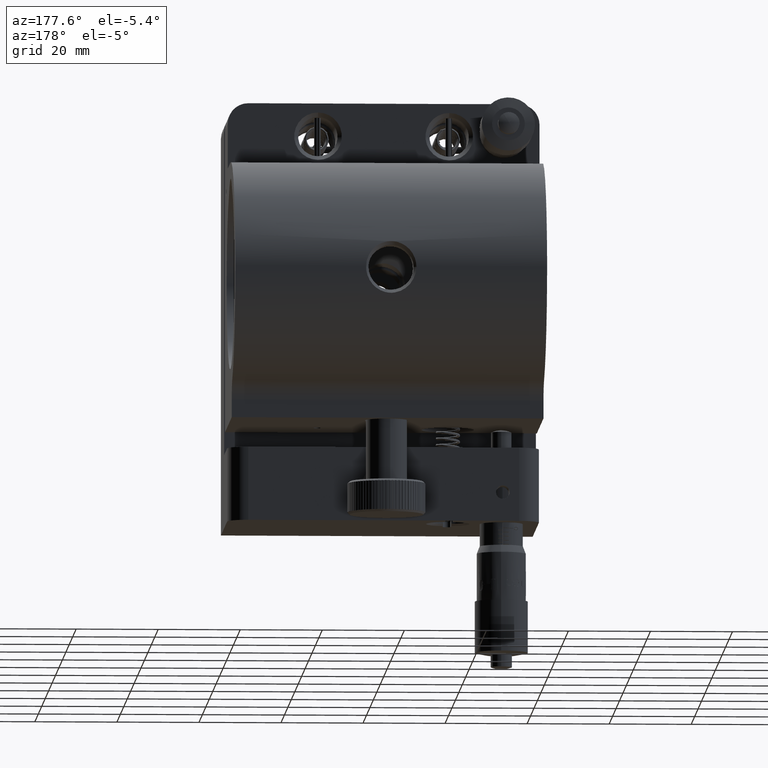
[diagram: clean part render]
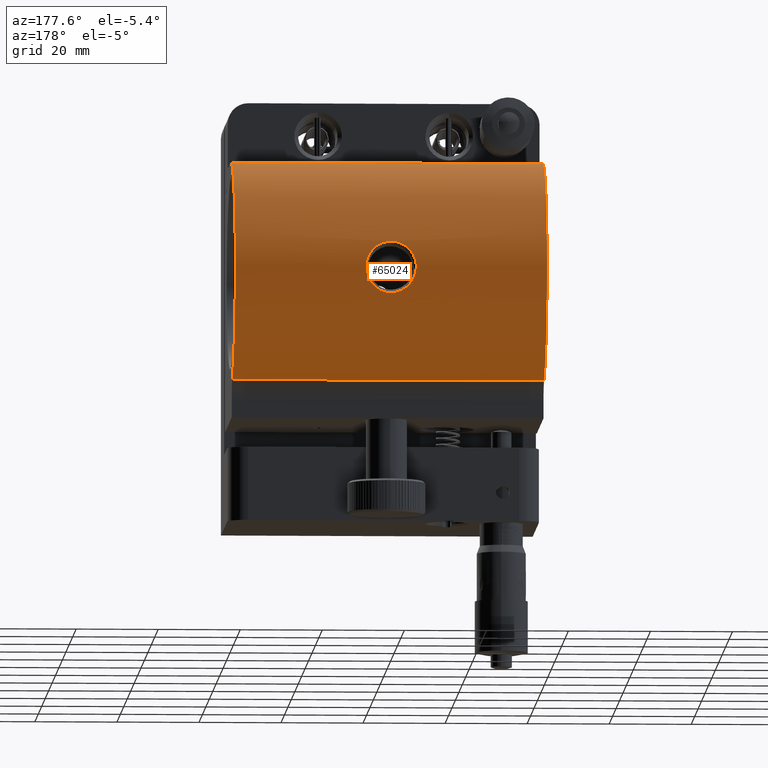
[diagram: same view with one face highlighted and labeled with its STEP entity id]
A machine part, auxiliary view. The second image highlights one B-rep face of the part: STEP entity #65024.
In plain terms, the highlighted cylindrical surface (partial cylindrical patch) has radius 28 mm, axis along (-1, -0, -0).
Its self-contained STEP definition (entity closure, byte-faithful):
#2238 = B_SPLINE_CURVE_WITH_KNOTS ( 'NONE', 3,
 ( #75915, #25864, #46938, #61275, #74730, #32886, #81722, #5171, #60977, #89007, #75310, #7834, #28861, #11465, #13821, #42191, #2263, #51823, #61581, #70709, #65195, #62665, #36389, #64794, #37628, #37336, #74565, #84103, #84401, #71011, #28263, #15136 ),
 .UNSPECIFIED., .F., .F.,
 ( 4, 2, 2, 2, 2, 2, 2, 2, 2, 2, 2, 2, 2, 2, 2, 4 ),
 ( 0.5000000000000000000, 0.5312500000000000000, 0.5625000000000000000, 0.6250000000000000000, 0.6562500000000000000, 0.6718750000000000000, 0.6875000000000000000, 0.7500000000000002200, 0.7812500000000002200, 0.7968750000000002200, 0.8125000000000002200, 0.8437500000000002200, 0.8750000000000002200, 0.9062500000000002200, 0.9375000000000001100, 1.000000000000000000 ),
 .UNSPECIFIED. ) ;
#2263 = CARTESIAN_POINT ( 'NONE',  ( -0.8020151957228004400, 83.28640839443372100, 6.281633589561216100 ) ) ;
#5002 = ORIENTED_EDGE ( 'NONE', *, *, #18049, .T. ) ;
#5171 = CARTESIAN_POINT ( 'NONE',  ( 4.048664636275285400, 83.59299964372608800, 4.765948128802787800 ) ) ;
#5892 = CARTESIAN_POINT ( 'NONE',  ( 4.051751842081933400, 83.59340847182842500, -4.763549747243200000 ) ) ;
#7834 = CARTESIAN_POINT ( 'NONE',  ( 2.717248387918061300, 83.42113405716233400, 5.664910762095868100 ) ) ;
#8179 = CARTESIAN_POINT ( 'NONE',  ( -37.99999999999999300, 55.99999999999979400, -9.584347204771859200E-014 ) ) ;
#8183 = DIRECTION ( 'NONE',  ( 0.0000000000000000000, 0.0000000000000000000, 1.000000000000000000 ) ) ;
#9779 = EDGE_CURVE ( 'NONE', #81884, #68925, #35064, .T. ) ;
#10037 = ORIENTED_EDGE ( 'NONE', *, *, #55019, .T. ) ;
#11465 = CARTESIAN_POINT ( 'NONE',  ( 1.582447328561504200, 83.31593584649343100, 6.160405067730834200 ) ) ;
#12101 = LINE ( 'NONE', #61838, #19688 ) ;
#12604 = DIRECTION ( 'NONE',  ( -1.000000000000000000, -0.0000000000000000000, -0.0000000000000000000 ) ) ;
#12868 = CARTESIAN_POINT ( 'NONE',  ( 3.743405247225039200, 83.54653296612438900, -5.024133250391980900 ) ) ;
#13821 = CARTESIAN_POINT ( 'NONE',  ( 0.7980807202635793500, 83.27687617770270400, 6.322343393602417400 ) ) ;
#15136 = CARTESIAN_POINT ( 'NONE',  ( -6.131752276060040300, 83.99999999999980100, -1.748090863545192300E-013 ) ) ;
#15729 = VERTEX_POINT ( 'NONE', #31658 ) ;
#15799 = CARTESIAN_POINT ( 'NONE',  ( 38.00000000000000700, 55.99999999999979400, -9.584347204771859200E-014 ) ) ;
#16464 = ORIENTED_EDGE ( 'NONE', *, *, #9779, .F. ) ;
#17911 = CARTESIAN_POINT ( 'NONE',  ( 38.00000000000000700, 55.99999999999979400, 27.99999999999990400 ) ) ;
#18049 = EDGE_CURVE ( 'NONE', #71386, #68925, #62941, .T. ) ;
#19577 = CARTESIAN_POINT ( 'NONE',  ( -2.718510192674235900, 83.42093943498618100, -5.665853050507869200 ) ) ;
#19688 = VECTOR ( 'NONE', #75300, 1000.000000000000000 ) ;
#19885 = CARTESIAN_POINT ( 'NONE',  ( -5.933252130300165700, 83.95527819307683600, -1.632772785258791000 ) ) ;
#20174 = CARTESIAN_POINT ( 'NONE',  ( -3.073236035063647600, 83.46033735208747800, -5.471716622475867100 ) ) ;
#20460 = CARTESIAN_POINT ( 'NONE',  ( -3.741423593908575400, 83.54616141535729000, -5.026165914435840600 ) ) ;
#22505 = DIRECTION ( 'NONE',  ( -1.000000000000000000, -0.0000000000000000000, -0.0000000000000000000 ) ) ;
#25864 = CARTESIAN_POINT ( 'NONE',  ( 6.131736912276909200, 83.99990133714264600, 0.4213674120397877800 ) ) ;
#26877 = CARTESIAN_POINT ( 'NONE',  ( -4.048990435230683400, 83.59291724786086800, -4.766443399832820800 ) ) ;
#27179 = CARTESIAN_POINT ( 'NONE',  ( 0.7980732263529142200, 83.28635106429354100, -6.281878644552842900 ) ) ;
#28263 = CARTESIAN_POINT ( 'NONE',  ( -6.132491279341644000, 83.99999999999978700, 0.8292308344536657400 ) ) ;
#28861 = CARTESIAN_POINT ( 'NONE',  ( 2.535441571572751900, 83.40269462142593700, 5.753195750657070600 ) ) ;
#31658 = CARTESIAN_POINT ( 'NONE',  ( 6.131748926908001000, 83.99999922025755000, 0.006607992519576321200 ) ) ;
#31730 = EDGE_LOOP ( 'NONE', ( #84123, #36768 ) ) ;
#32239 = CARTESIAN_POINT ( 'NONE',  ( -37.99999999999999300, 55.99999999999979400, 27.99999999999990400 ) ) ;
#32886 = CARTESIAN_POINT ( 'NONE',  ( 5.342921004288947500, 83.82673648497399200, 3.207030123834930800 ) ) ;
#33887 = CARTESIAN_POINT ( 'NONE',  ( -0.8012989492654717400, 83.27690611871509000, -6.322214217685824700 ) ) ;
#34200 = CARTESIAN_POINT ( 'NONE',  ( -1.585108213186972900, 83.31588813121396700, -6.160575905356922500 ) ) ;
#34482 = CARTESIAN_POINT ( 'NONE',  ( -5.341911942470646000, 83.82705530148472000, -3.204729216498923200 ) ) ;
#35064 = LINE ( 'NONE', #87063, #36137 ) ;
#35874 = DIRECTION ( 'NONE',  ( 1.000000000000000000, 0.0000000000000000000, 0.0000000000000000000 ) ) ;
#36137 = VECTOR ( 'NONE', #12604, 1000.000000000000000 ) ;
#36203 = CARTESIAN_POINT ( 'NONE',  ( 38.00000000000000700, 55.99999999999979400, -9.584347204771859200E-014 ) ) ;
#36389 = CARTESIAN_POINT ( 'NONE',  ( -3.085033064450040100, 83.46033362850047900, 5.475730376528114000 ) ) ;
#36768 = ORIENTED_EDGE ( 'NONE', *, *, #78081, .T. ) ;
#36819 = VERTEX_POINT ( 'NONE', #50842 ) ;
#37336 = CARTESIAN_POINT ( 'NONE',  ( -4.622027813131273500, 83.68855321195157200, 4.175142844660492800 ) ) ;
#37628 = CARTESIAN_POINT ( 'NONE',  ( -4.055267467222162900, 83.59399690683763100, 4.760160863860467600 ) ) ;
#38819 = CYLINDRICAL_SURFACE ( 'NONE', #80952, 27.99999999999999600 ) ;
#39058 = EDGE_CURVE ( 'NONE', #40296, #81884, #90114, .T. ) ;
#40296 = VERTEX_POINT ( 'NONE', #84513 ) ;
#40321 = CARTESIAN_POINT ( 'NONE',  ( 4.618316260113570800, 83.68793611521672900, -4.179209371078480100 ) ) ;
#40328 = AXIS2_PLACEMENT_3D ( 'NONE', #36203, #35874, #85011 ) ;
#40423 = ORIENTED_EDGE ( 'NONE', *, *, #39058, .F. ) ;
#40924 = CARTESIAN_POINT ( 'NONE',  ( 2.726663832564829400, 83.41993899754183400, -5.672238446792051500 ) ) ;
#41219 = CARTESIAN_POINT ( 'NONE',  ( 5.973732727639681900, 83.96344776100710300, -1.633469704416410200 ) ) ;
#42191 = CARTESIAN_POINT ( 'NONE',  ( -0.4056695994395069800, 83.27686970427984600, 6.322371322203410100 ) ) ;
#46938 = CARTESIAN_POINT ( 'NONE',  ( 6.092209349748423500, 83.99058927202136700, 0.8307330661512870600 ) ) ;
#47942 = CARTESIAN_POINT ( 'NONE',  ( -5.814069395317333500, 83.92888538148466200, -2.032531764481353900 ) ) ;
#48256 = CARTESIAN_POINT ( 'NONE',  ( 6.131748926908001000, 83.99999922025755000, 0.006607992519576321200 ) ) ;
#50842 = CARTESIAN_POINT ( 'NONE',  ( -6.131752276060040300, 83.99999999999980100, -1.748090863545192300E-013 ) ) ;
#51441 = EDGE_LOOP ( 'NONE', ( #40423, #10037, #5002, #16464 ) ) ;
#51823 = CARTESIAN_POINT ( 'NONE',  ( -1.389176824721134700, 83.31420475158942900, 6.159218269681018000 ) ) ;
#53486 = CARTESIAN_POINT ( 'NONE',  ( -6.131752276060040300, 83.99999999999980100, -1.748090863545192300E-013 ) ) ;
#55019 = EDGE_CURVE ( 'NONE', #40296, #71386, #12101, .T. ) ;
#60640 = CARTESIAN_POINT ( 'NONE',  ( -37.99999999999999300, 66.18181818181804500, -26.08314740426086300 ) ) ;
#60977 = CARTESIAN_POINT ( 'NONE',  ( 3.740713435244874800, 83.54628769462635800, 5.025468251431009400 ) ) ;
#61108 = CARTESIAN_POINT ( 'NONE',  ( -2.536347602808982900, 83.40246395436503200, -5.754291591706415700 ) ) ;
#61275 = CARTESIAN_POINT ( 'NONE',  ( 5.934123128896670700, 83.95497129755037200, 1.637920930731661600 ) ) ;
#61581 = CARTESIAN_POINT ( 'NONE',  ( -1.583671240149476400, 83.32570111538537100, 6.108191089801295900 ) ) ;
#61755 = FACE_BOUND ( 'NONE', #31730, .T. ) ;
#61838 = CARTESIAN_POINT ( 'NONE',  ( 38.00000000000000700, 66.18181818181804500, -26.08314740426086300 ) ) ;
#61978 = CARTESIAN_POINT ( 'NONE',  ( -3.244704081124941000, 83.48116013382347900, -5.366486357872556600 ) ) ;
#62665 = CARTESIAN_POINT ( 'NONE',  ( -2.730733955293319000, 83.42036218154397900, 5.670200744710002500 ) ) ;
#62941 = CIRCLE ( 'NONE', #77206, 27.99999999999999600 ) ;
#63991 = DIRECTION ( 'NONE',  ( 1.000000000000000000, 0.0000000000000000000, 0.0000000000000000000 ) ) ;
#64794 = CARTESIAN_POINT ( 'NONE',  ( -3.746893608220561900, 83.54708285297630300, 5.021132585009708800 ) ) ;
#65024 = ADVANCED_FACE ( 'NONE', ( #61755, #67315 ), #38819, .T. ) ;
#65195 = CARTESIAN_POINT ( 'NONE',  ( -2.164232035651058700, 83.36860769018078100, 5.913220168745341200 ) ) ;
#67315 = FACE_OUTER_BOUND ( 'NONE', #51441, .T. ) ;
#68736 = CARTESIAN_POINT ( 'NONE',  ( 0.4018959311760176300, 83.27685418300428900, -6.322438286372481300 ) ) ;
#68925 = VERTEX_POINT ( 'NONE', #32239 ) ;
#69037 = CARTESIAN_POINT ( 'NONE',  ( 1.579430570523621100, 83.32550909149084400, -6.109047941366729800 ) ) ;
#69609 = EDGE_CURVE ( 'NONE', #36819, #15729, #70389, .T. ) ;
#70389 = B_SPLINE_CURVE_WITH_KNOTS ( 'NONE', 3,
 ( #53486, #87660, #76034, #19885, #47942, #34482, #76341, #26877, #20460, #61978, #20174, #19577, #61108, #34200, #33887, #68736, #27179, #75750, #69037, #90031, #83043, #40924, #82728, #12868, #5892, #40321, #89126, #89728, #83345, #41219, #75137, #48256 ),
 .UNSPECIFIED., .F., .F.,
 ( 4, 2, 2, 2, 2, 2, 2, 2, 2, 2, 2, 2, 2, 2, 2, 4 ),
 ( 0.0000000000000000000, 0.03125000000000001400, 0.06250000000000002800, 0.1250000000000000600, 0.1562500000000000600, 0.1718750000000001100, 0.1875000000000001400, 0.2500000000000002200, 0.2812500000000002200, 0.2968750000000002200, 0.3125000000000002800, 0.3437500000000002200, 0.3750000000000001700, 0.4062500000000001100, 0.4375000000000000600, 0.5000000000000000000 ),
 .UNSPECIFIED. ) ;
#70709 = CARTESIAN_POINT ( 'NONE',  ( -1.970207815863964000, 83.35281203023070900, 5.985617251024971000 ) ) ;
#71011 = CARTESIAN_POINT ( 'NONE',  ( -5.975135846611561200, 83.96316785994442000, 1.637056560376621000 ) ) ;
#71386 = VERTEX_POINT ( 'NONE', #60640 ) ;
#74565 = CARTESIAN_POINT ( 'NONE',  ( -4.873804427749643500, 83.73501289812954000, 3.858405572570190700 ) ) ;
#74730 = CARTESIAN_POINT ( 'NONE',  ( 5.814774894384661300, 83.92849539124416900, 2.037700072652277600 ) ) ;
#75137 = CARTESIAN_POINT ( 'NONE',  ( 6.131772956170185500, 84.00019498648745800, -0.8229108465208462300 ) ) ;
#75300 = DIRECTION ( 'NONE',  ( -1.000000000000000000, -0.0000000000000000000, -0.0000000000000000000 ) ) ;
#75310 = CARTESIAN_POINT ( 'NONE',  ( 3.072075562706392500, 83.46051866699272600, 5.470806290038301400 ) ) ;
#75750 = CARTESIAN_POINT ( 'NONE',  ( 1.385007671662860300, 83.31405059425256400, -6.159900856490691200 ) ) ;
#75915 = CARTESIAN_POINT ( 'NONE',  ( 6.131748926908001000, 83.99999922025755000, 0.006607992519576321200 ) ) ;
#76034 = CARTESIAN_POINT ( 'NONE',  ( -6.091608363086249000, 83.99077088612732200, -0.8247854393280130700 ) ) ;
#76341 = CARTESIAN_POINT ( 'NONE',  ( -4.900952457596032400, 83.73515404704632200, -3.887607196087200700 ) ) ;
#77206 = AXIS2_PLACEMENT_3D ( 'NONE', #8179, #63991, #85028 ) ;
#78081 = EDGE_CURVE ( 'NONE', #15729, #36819, #2238, .T. ) ;
#80952 = AXIS2_PLACEMENT_3D ( 'NONE', #15799, #22505, #8183 ) ;
#81722 = CARTESIAN_POINT ( 'NONE',  ( 4.902204278729639600, 83.73508929113839400, 3.887979633826009500 ) ) ;
#81884 = VERTEX_POINT ( 'NONE', #17911 ) ;
#82728 = CARTESIAN_POINT ( 'NONE',  ( 3.081250147615342400, 83.45986348210416800, -5.478073650077432100 ) ) ;
#83043 = CARTESIAN_POINT ( 'NONE',  ( 2.159521212120573800, 83.36825865846351700, -5.914833379730422900 ) ) ;
#83345 = CARTESIAN_POINT ( 'NONE',  ( 5.499575882274676500, 83.86116761435126000, -2.812649579039381700 ) ) ;
#84103 = CARTESIAN_POINT ( 'NONE',  ( -5.314150540313998600, 83.82140018513928200, 3.176149517920329000 ) ) ;
#84123 = ORIENTED_EDGE ( 'NONE', *, *, #69609, .T. ) ;
#84401 = CARTESIAN_POINT ( 'NONE',  ( -5.501961043498903700, 83.86116393077789200, 2.812511717066592100 ) ) ;
#84513 = CARTESIAN_POINT ( 'NONE',  ( 38.00000000000000700, 66.18181818181804500, -26.08314740426086300 ) ) ;
#85011 = DIRECTION ( 'NONE',  ( 0.0000000000000000000, 0.0000000000000000000, -1.000000000000000000 ) ) ;
#85028 = DIRECTION ( 'NONE',  ( 0.0000000000000000000, 0.0000000000000000000, -1.000000000000000000 ) ) ;
#87063 = CARTESIAN_POINT ( 'NONE',  ( 38.00000000000000700, 55.99999999999979400, 27.99999999999990400 ) ) ;
#87660 = CARTESIAN_POINT ( 'NONE',  ( -6.131382372875195100, 83.99999999999981500, -0.4150659872179427400 ) ) ;
#89007 = CARTESIAN_POINT ( 'NONE',  ( 3.243629653380820000, 83.48133037877680400, 5.365613183768035200 ) ) ;
#89126 = CARTESIAN_POINT ( 'NONE',  ( 4.870173540701919100, 83.73448868576444700, -3.862244400869338200 ) ) ;
#89728 = CARTESIAN_POINT ( 'NONE',  ( 5.311038245023673300, 83.82115522008088200, -3.178382716573141300 ) ) ;
#90031 = CARTESIAN_POINT ( 'NONE',  ( 1.965832535759992600, 83.35253521448822800, -5.986879921899805400 ) ) ;
#90114 = CIRCLE ( 'NONE', #40328, 27.99999999999999600 ) ;